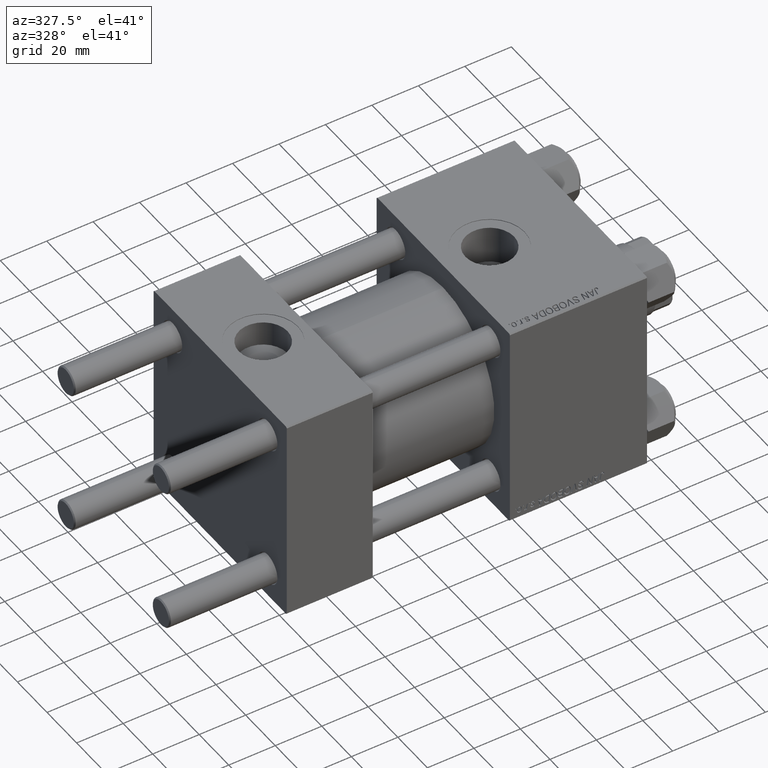
[diagram: clean part render]
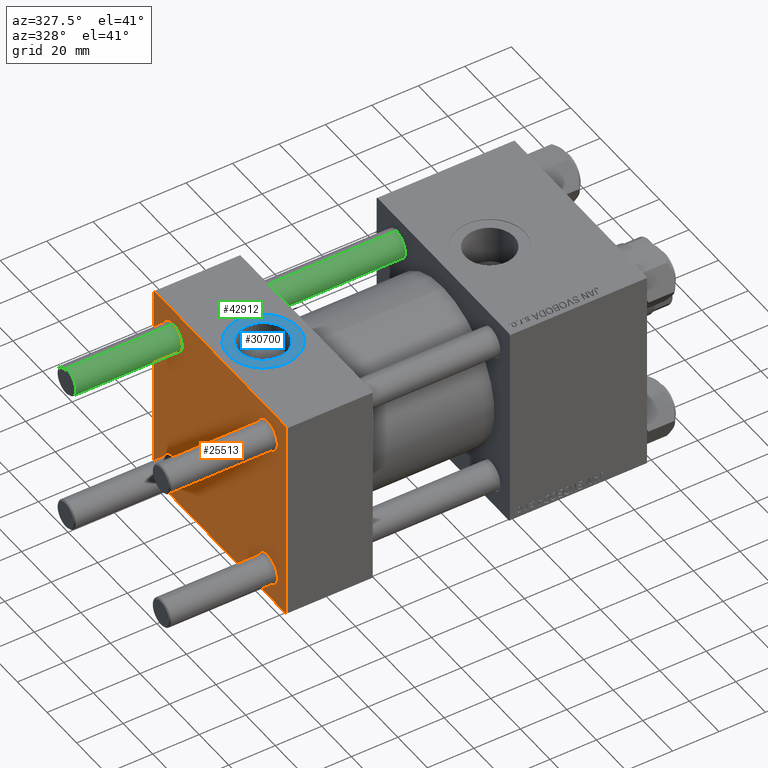
[diagram: same view with three faces highlighted in distinct colors, each labeled with its STEP entity id]
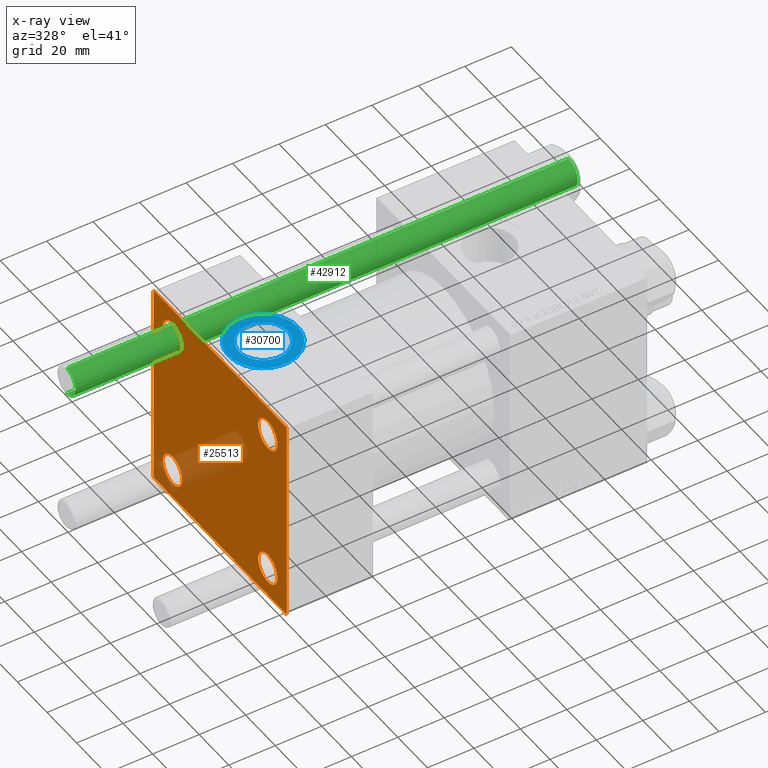
[diagram: x-ray of the same camera — body ghosted, the three highlighted faces saturated]
A machine part, auxiliary view with three faces highlighted in distinct colors.
The next image is the same camera in x-ray (body ghosted, the three faces saturated) — at least one of them is partly hidden behind the body in this view.
Their STEP definitions:

[orange] entity #25513 — the highlighted planar face has unit normal (-1, 0, 0).
#164 = DIRECTION ( 'NONE',  ( -1.000000000000000000, 0.000000000000000000, -0.000000000000000000 ) ) ;
#176 = CARTESIAN_POINT ( 'NONE',  ( 0.000000000000000000, -32.14999999999997726, -38.64999999999999147 ) ) ;
#410 = FACE_BOUND ( 'NONE', #42565, .T. ) ;
#802 = DIRECTION ( 'NONE',  ( -0.000000000000000000, -0.7071067811865474617, -0.7071067811865474617 ) ) ;
#1678 = VERTEX_POINT ( 'NONE', #45246 ) ;
#1873 = EDGE_CURVE ( 'NONE', #1678, #38840, #30712, .T. ) ;
#2014 = DIRECTION ( 'NONE',  ( -0.000000000000000000, 0.7071067811865425767, 0.7071067811865524577 ) ) ;
#2254 = DIRECTION ( 'NONE',  ( 1.000000000000000000, -0.000000000000000000, 0.000000000000000000 ) ) ;
#2354 = CARTESIAN_POINT ( 'NONE',  ( 0.000000000000000000, 44.99999999999998579, 44.50000000000001421 ) ) ;
#2434 = EDGE_CURVE ( 'NONE', #39003, #40499, #32366, .T. ) ;
#2668 = VERTEX_POINT ( 'NONE', #24236 ) ;
#2875 = EDGE_LOOP ( 'NONE', ( #44546, #21232 ) ) ;
#3552 = ORIENTED_EDGE ( 'NONE', *, *, #2434, .T. ) ;
#4585 = VECTOR ( 'NONE', #6507, 1000.000000000000114 ) ;
#5540 = DIRECTION ( 'NONE',  ( 1.000000000000000000, -0.000000000000000000, 0.000000000000000000 ) ) ;
#5693 = ORIENTED_EDGE ( 'NONE', *, *, #29555, .T. ) ;
#5806 = CARTESIAN_POINT ( 'NONE',  ( 0.000000000000000000, -45.00000000000000000, -44.49999999999995737 ) ) ;
#5877 = ORIENTED_EDGE ( 'NONE', *, *, #37934, .F. ) ;
#5882 = EDGE_CURVE ( 'NONE', #31914, #18005, #46362, .T. ) ;
#6075 = EDGE_LOOP ( 'NONE', ( #21102, #49089 ) ) ;
#6098 = EDGE_CURVE ( 'NONE', #31914, #8565, #44421, .T. ) ;
#6121 = EDGE_CURVE ( 'NONE', #38840, #1678, #6531, .T. ) ;
#6507 = DIRECTION ( 'NONE',  ( 0.000000000000000000, -0.7071067811865474617, 0.7071067811865474617 ) ) ;
#6531 = CIRCLE ( 'NONE', #24267, 6.499999999999977796 ) ;
#6868 = LINE ( 'NONE', #14942, #11347 ) ;
#6880 = CARTESIAN_POINT ( 'NONE',  ( 0.000000000000000000, 32.14999999999999147, 38.64999999999999147 ) ) ;
#7453 = AXIS2_PLACEMENT_3D ( 'NONE', #12968, #32420, #44038 ) ;
#7473 = FACE_BOUND ( 'NONE', #2875, .T. ) ;
#8454 = CARTESIAN_POINT ( 'NONE',  ( 0.000000000000000000, -44.49999999999995737, -45.00000000000000000 ) ) ;
#8456 = CARTESIAN_POINT ( 'NONE',  ( 0.000000000000000000, 0.000000000000000000, 0.000000000000000000 ) ) ;
#8565 = VERTEX_POINT ( 'NONE', #33125 ) ;
#8721 = EDGE_CURVE ( 'NONE', #27008, #8565, #29523, .T. ) ;
#9644 = VERTEX_POINT ( 'NONE', #8454 ) ;
#9801 = DIRECTION ( 'NONE',  ( 0.000000000000000000, -1.000000000000000000, -1.541976423090495387E-16 ) ) ;
#11347 = VECTOR ( 'NONE', #30358, 1000.000000000000000 ) ;
#11441 = VECTOR ( 'NONE', #2014, 1000.000000000000114 ) ;
#11734 = CARTESIAN_POINT ( 'NONE',  ( 0.000000000000000000, 44.74999999999999289, 44.74999999999999289 ) ) ;
#12246 = FACE_OUTER_BOUND ( 'NONE', #15155, .T. ) ;
#12584 = AXIS2_PLACEMENT_3D ( 'NONE', #46725, #47473, #39882 ) ;
#12626 = DIRECTION ( 'NONE',  ( 0.000000000000000000, 7.709882115452476934E-17, -1.000000000000000000 ) ) ;
#12823 = CARTESIAN_POINT ( 'NONE',  ( 0.000000000000000000, 32.14999999999999147, -25.65000000000002700 ) ) ;
#12827 = EDGE_CURVE ( 'NONE', #18005, #19794, #22240, .T. ) ;
#12968 = CARTESIAN_POINT ( 'NONE',  ( 0.000000000000000000, 32.14999999999999147, 32.15000000000000568 ) ) ;
#13771 = ORIENTED_EDGE ( 'NONE', *, *, #36974, .T. ) ;
#13995 = VECTOR ( 'NONE', #14403, 1000.000000000000000 ) ;
#14220 = EDGE_CURVE ( 'NONE', #2668, #42102, #36608, .T. ) ;
#14403 = DIRECTION ( 'NONE',  ( 0.000000000000000000, 0.000000000000000000, -1.000000000000000000 ) ) ;
#14921 = ORIENTED_EDGE ( 'NONE', *, *, #8721, .T. ) ;
#14942 = CARTESIAN_POINT ( 'NONE',  ( 0.000000000000000000, 44.99999999999998579, -44.99999999999998579 ) ) ;
#15155 = EDGE_LOOP ( 'NONE', ( #35939, #13771, #26961, #5693, #5877, #14921, #44265, #30003 ) ) ;
#16563 = CARTESIAN_POINT ( 'NONE',  ( 0.000000000000000000, -32.14999999999997726, 32.15000000000001279 ) ) ;
#16652 = DIRECTION ( 'NONE',  ( 0.000000000000000000, 0.000000000000000000, 1.000000000000000000 ) ) ;
#16895 = LINE ( 'NONE', #47733, #36997 ) ;
#17621 = CARTESIAN_POINT ( 'NONE',  ( 0.000000000000000000, -44.74999999999998579, -44.74999999999998579 ) ) ;
#17759 = EDGE_LOOP ( 'NONE', ( #21177, #34426 ) ) ;
#18005 = VERTEX_POINT ( 'NONE', #2354 ) ;
#18572 = DIRECTION ( 'NONE',  ( 0.000000000000000000, 0.000000000000000000, 1.000000000000000000 ) ) ;
#18864 = AXIS2_PLACEMENT_3D ( 'NONE', #29209, #29957, #18572 ) ;
#19794 = VERTEX_POINT ( 'NONE', #43421 ) ;
#21000 = AXIS2_PLACEMENT_3D ( 'NONE', #40139, #5540, #16652 ) ;
#21102 = ORIENTED_EDGE ( 'NONE', *, *, #6121, .T. ) ;
#21177 = ORIENTED_EDGE ( 'NONE', *, *, #47295, .T. ) ;
#21232 = ORIENTED_EDGE ( 'NONE', *, *, #48316, .T. ) ;
#22240 = LINE ( 'NONE', #30068, #13995 ) ;
#24236 = CARTESIAN_POINT ( 'NONE',  ( 0.000000000000000000, -32.14999999999997726, 38.65000000000003411 ) ) ;
#24267 = AXIS2_PLACEMENT_3D ( 'NONE', #40128, #2254, #44176 ) ;
#24273 = AXIS2_PLACEMENT_3D ( 'NONE', #40212, #36182, #44508 ) ;
#24711 = CIRCLE ( 'NONE', #25532, 6.499999999999977796 ) ;
#25513 = ADVANCED_FACE ( 'NONE', ( #7473, #410, #42826, #27411, #12246 ), #46873, .T. ) ;
#25532 = AXIS2_PLACEMENT_3D ( 'NONE', #46434, #33804, #37590 ) ;
#25938 = ORIENTED_EDGE ( 'NONE', *, *, #26810, .T. ) ;
#26810 = EDGE_CURVE ( 'NONE', #40499, #39003, #27905, .T. ) ;
#26961 = ORIENTED_EDGE ( 'NONE', *, *, #42953, .T. ) ;
#27008 = VERTEX_POINT ( 'NONE', #41872 ) ;
#27147 = DIRECTION ( 'NONE',  ( 0.000000000000000000, 0.7071067811865474617, -0.7071067811865474617 ) ) ;
#27411 = FACE_BOUND ( 'NONE', #17759, .T. ) ;
#27774 = EDGE_CURVE ( 'NONE', #33400, #47457, #24711, .T. ) ;
#27905 = CIRCLE ( 'NONE', #12584, 6.499999999999977796 ) ;
#29209 = CARTESIAN_POINT ( 'NONE',  ( 0.000000000000000000, -32.14999999999997726, 32.15000000000001279 ) ) ;
#29523 = LINE ( 'NONE', #44933, #11441 ) ;
#29555 = EDGE_CURVE ( 'NONE', #9644, #39486, #41372, .T. ) ;
#29814 = VECTOR ( 'NONE', #802, 1000.000000000000114 ) ;
#29957 = DIRECTION ( 'NONE',  ( 1.000000000000000000, -0.000000000000000000, 0.000000000000000000 ) ) ;
#30003 = ORIENTED_EDGE ( 'NONE', *, *, #5882, .T. ) ;
#30068 = CARTESIAN_POINT ( 'NONE',  ( 0.000000000000000000, 44.99999999999998579, 45.00000000000001421 ) ) ;
#30358 = DIRECTION ( 'NONE',  ( 0.000000000000000000, -1.000000000000000000, -1.541976423090495633E-16 ) ) ;
#30712 = CIRCLE ( 'NONE', #21000, 6.499999999999977796 ) ;
#31217 = CARTESIAN_POINT ( 'NONE',  ( 0.000000000000000000, -32.14999999999997726, -25.65000000000003411 ) ) ;
#31852 = CARTESIAN_POINT ( 'NONE',  ( 0.000000000000000000, 44.74999999999998579, -44.74999999999998579 ) ) ;
#31914 = VERTEX_POINT ( 'NONE', #46307 ) ;
#31992 = DIRECTION ( 'NONE',  ( 0.000000000000000000, 0.000000000000000000, 1.000000000000000000 ) ) ;
#32366 = CIRCLE ( 'NONE', #24273, 6.499999999999977796 ) ;
#32420 = DIRECTION ( 'NONE',  ( 1.000000000000000000, -0.000000000000000000, 0.000000000000000000 ) ) ;
#33125 = CARTESIAN_POINT ( 'NONE',  ( 0.000000000000000000, -44.49999999999995737, 45.00000000000000000 ) ) ;
#33400 = VERTEX_POINT ( 'NONE', #42888 ) ;
#33804 = DIRECTION ( 'NONE',  ( 1.000000000000000000, -0.000000000000000000, 0.000000000000000000 ) ) ;
#34426 = ORIENTED_EDGE ( 'NONE', *, *, #27774, .T. ) ;
#35939 = ORIENTED_EDGE ( 'NONE', *, *, #12827, .T. ) ;
#36182 = DIRECTION ( 'NONE',  ( 1.000000000000000000, -0.000000000000000000, 0.000000000000000000 ) ) ;
#36520 = AXIS2_PLACEMENT_3D ( 'NONE', #16563, #43859, #31992 ) ;
#36608 = CIRCLE ( 'NONE', #18864, 6.500000000000019540 ) ;
#36974 = EDGE_CURVE ( 'NONE', #19794, #44439, #47513, .T. ) ;
#36997 = VECTOR ( 'NONE', #12626, 1000.000000000000000 ) ;
#37590 = DIRECTION ( 'NONE',  ( 0.000000000000000000, 0.000000000000000000, 1.000000000000000000 ) ) ;
#37934 = EDGE_CURVE ( 'NONE', #27008, #39486, #16895, .T. ) ;
#38091 = VECTOR ( 'NONE', #9801, 1000.000000000000000 ) ;
#38840 = VERTEX_POINT ( 'NONE', #12823 ) ;
#39003 = VERTEX_POINT ( 'NONE', #176 ) ;
#39486 = VERTEX_POINT ( 'NONE', #5806 ) ;
#39882 = DIRECTION ( 'NONE',  ( 0.000000000000000000, 0.000000000000000000, 1.000000000000000000 ) ) ;
#40128 = CARTESIAN_POINT ( 'NONE',  ( 0.000000000000000000, 32.14999999999999147, -32.15000000000000568 ) ) ;
#40139 = CARTESIAN_POINT ( 'NONE',  ( 0.000000000000000000, 32.14999999999999147, -32.15000000000000568 ) ) ;
#40212 = CARTESIAN_POINT ( 'NONE',  ( 0.000000000000000000, -32.14999999999997726, -32.15000000000001279 ) ) ;
#40499 = VERTEX_POINT ( 'NONE', #31217 ) ;
#41227 = VECTOR ( 'NONE', #27147, 1000.000000000000114 ) ;
#41372 = LINE ( 'NONE', #17621, #4585 ) ;
#41872 = CARTESIAN_POINT ( 'NONE',  ( 0.000000000000000000, -45.00000000000000711, 44.49999999999997158 ) ) ;
#42102 = VERTEX_POINT ( 'NONE', #43217 ) ;
#42416 = AXIS2_PLACEMENT_3D ( 'NONE', #8456, #164, #46131 ) ;
#42565 = EDGE_LOOP ( 'NONE', ( #25938, #3552 ) ) ;
#42826 = FACE_BOUND ( 'NONE', #6075, .T. ) ;
#42888 = CARTESIAN_POINT ( 'NONE',  ( 0.000000000000000000, 32.14999999999999147, 25.65000000000002700 ) ) ;
#42953 = EDGE_CURVE ( 'NONE', #44439, #9644, #6868, .T. ) ;
#43217 = CARTESIAN_POINT ( 'NONE',  ( 0.000000000000000000, -32.14999999999997726, 25.64999999999999147 ) ) ;
#43421 = CARTESIAN_POINT ( 'NONE',  ( 0.000000000000000000, 44.99999999999998579, -44.49999999999995737 ) ) ;
#43859 = DIRECTION ( 'NONE',  ( 1.000000000000000000, -0.000000000000000000, 0.000000000000000000 ) ) ;
#44038 = DIRECTION ( 'NONE',  ( 0.000000000000000000, 0.000000000000000000, 1.000000000000000000 ) ) ;
#44176 = DIRECTION ( 'NONE',  ( 0.000000000000000000, 0.000000000000000000, 1.000000000000000000 ) ) ;
#44265 = ORIENTED_EDGE ( 'NONE', *, *, #6098, .F. ) ;
#44421 = LINE ( 'NONE', #48215, #38091 ) ;
#44439 = VERTEX_POINT ( 'NONE', #46159 ) ;
#44508 = DIRECTION ( 'NONE',  ( 0.000000000000000000, 0.000000000000000000, 1.000000000000000000 ) ) ;
#44546 = ORIENTED_EDGE ( 'NONE', *, *, #14220, .T. ) ;
#44933 = CARTESIAN_POINT ( 'NONE',  ( -0.000000000000000000, -44.75000000000029843, 44.74999999999967315 ) ) ;
#45246 = CARTESIAN_POINT ( 'NONE',  ( 0.000000000000000000, 32.14999999999999147, -38.64999999999998437 ) ) ;
#46131 = DIRECTION ( 'NONE',  ( -0.000000000000000000, 0.000000000000000000, 1.000000000000000000 ) ) ;
#46159 = CARTESIAN_POINT ( 'NONE',  ( 0.000000000000000000, 44.49999999999998579, -44.99999999999998579 ) ) ;
#46307 = CARTESIAN_POINT ( 'NONE',  ( 0.000000000000000000, 44.49999999999998579, 45.00000000000001421 ) ) ;
#46362 = LINE ( 'NONE', #11734, #41227 ) ;
#46434 = CARTESIAN_POINT ( 'NONE',  ( 0.000000000000000000, 32.14999999999999147, 32.15000000000000568 ) ) ;
#46725 = CARTESIAN_POINT ( 'NONE',  ( 0.000000000000000000, -32.14999999999997726, -32.15000000000001279 ) ) ;
#46873 = PLANE ( 'NONE',  #42416 ) ;
#47295 = EDGE_CURVE ( 'NONE', #47457, #33400, #48574, .T. ) ;
#47457 = VERTEX_POINT ( 'NONE', #6880 ) ;
#47473 = DIRECTION ( 'NONE',  ( 1.000000000000000000, -0.000000000000000000, 0.000000000000000000 ) ) ;
#47513 = LINE ( 'NONE', #31852, #29814 ) ;
#47733 = CARTESIAN_POINT ( 'NONE',  ( 0.000000000000000000, -45.00000000000000711, 45.00000000000000000 ) ) ;
#47816 = CIRCLE ( 'NONE', #36520, 6.500000000000019540 ) ;
#48215 = CARTESIAN_POINT ( 'NONE',  ( 0.000000000000000000, 44.99999999999998579, 45.00000000000001421 ) ) ;
#48316 = EDGE_CURVE ( 'NONE', #42102, #2668, #47816, .T. ) ;
#48574 = CIRCLE ( 'NONE', #7453, 6.499999999999977796 ) ;
#49089 = ORIENTED_EDGE ( 'NONE', *, *, #1873, .T. ) ;

[blue] entity #30700 — the highlighted planar face has unit normal (0, 0, 1).
#955 = CARTESIAN_POINT ( 'NONE',  ( 33.50000000000000000, -8.673617379884038628E-15, 44.80000000000000426 ) ) ;
#1457 = AXIS2_PLACEMENT_3D ( 'NONE', #23735, #42689, #8063 ) ;
#2129 = EDGE_CURVE ( 'NONE', #22354, #34541, #21835, .T. ) ;
#4272 = CARTESIAN_POINT ( 'NONE',  ( 18.50000000000000000, -8.673617379884038628E-15, 44.80000000000000426 ) ) ;
#4629 = ORIENTED_EDGE ( 'NONE', *, *, #2129, .T. ) ;
#4719 = AXIS2_PLACEMENT_3D ( 'NONE', #10453, #14746, #37988 ) ;
#5482 = CIRCLE ( 'NONE', #1457, 15.00000000000000355 ) ;
#5833 = AXIS2_PLACEMENT_3D ( 'NONE', #4272, #47454, #23954 ) ;
#7137 = CIRCLE ( 'NONE', #4719, 10.48000000000000043 ) ;
#7705 = DIRECTION ( 'NONE',  ( 1.000000000000000000, 0.000000000000000000, -0.000000000000000000 ) ) ;
#7787 = CARTESIAN_POINT ( 'NONE',  ( 3.499999999999997780, -6.836647181163008250E-15, 44.80000000000000426 ) ) ;
#8063 = DIRECTION ( 'NONE',  ( 1.000000000000000000, 0.000000000000000000, 0.000000000000000000 ) ) ;
#8475 = EDGE_LOOP ( 'NONE', ( #46095, #45339 ) ) ;
#8644 = AXIS2_PLACEMENT_3D ( 'NONE', #26912, #33986, #7705 ) ;
#10453 = CARTESIAN_POINT ( 'NONE',  ( 18.50000000000000000, -8.673617379884038628E-15, 44.80000000000000426 ) ) ;
#12638 = VERTEX_POINT ( 'NONE', #40189 ) ;
#12810 = DIRECTION ( 'NONE',  ( 1.000000000000000000, 0.000000000000000000, 0.000000000000000000 ) ) ;
#14746 = DIRECTION ( 'NONE',  ( 0.000000000000000000, 0.000000000000000000, 1.000000000000000000 ) ) ;
#21835 = CIRCLE ( 'NONE', #49276, 15.00000000000000355 ) ;
#22354 = VERTEX_POINT ( 'NONE', #7787 ) ;
#23735 = CARTESIAN_POINT ( 'NONE',  ( 18.50000000000000000, -8.673617379884038628E-15, 44.80000000000000426 ) ) ;
#23931 = DIRECTION ( 'NONE',  ( 0.000000000000000000, 0.000000000000000000, 1.000000000000000000 ) ) ;
#23954 = DIRECTION ( 'NONE',  ( 1.000000000000000000, 0.000000000000000000, 0.000000000000000000 ) ) ;
#26912 = CARTESIAN_POINT ( 'NONE',  ( 18.50000000000000000, -8.673617379884038628E-15, 44.80000000000000426 ) ) ;
#29197 = CIRCLE ( 'NONE', #5833, 10.48000000000000043 ) ;
#29982 = CARTESIAN_POINT ( 'NONE',  ( 28.98000000000000043, -8.673617379884038628E-15, 44.80000000000000426 ) ) ;
#30700 = ADVANCED_FACE ( 'NONE', ( #30706, #46116 ), #41565, .T. ) ;
#30706 = FACE_BOUND ( 'NONE', #8475, .T. ) ;
#32293 = EDGE_CURVE ( 'NONE', #34541, #22354, #5482, .T. ) ;
#33119 = ORIENTED_EDGE ( 'NONE', *, *, #32293, .T. ) ;
#33951 = EDGE_LOOP ( 'NONE', ( #33119, #4629 ) ) ;
#33986 = DIRECTION ( 'NONE',  ( 0.000000000000000000, 0.000000000000000000, 1.000000000000000000 ) ) ;
#34541 = VERTEX_POINT ( 'NONE', #955 ) ;
#34559 = CARTESIAN_POINT ( 'NONE',  ( 18.50000000000000000, -8.673617379884038628E-15, 44.80000000000000426 ) ) ;
#37988 = DIRECTION ( 'NONE',  ( 1.000000000000000000, 0.000000000000000000, 0.000000000000000000 ) ) ;
#38283 = EDGE_CURVE ( 'NONE', #12638, #41669, #7137, .T. ) ;
#40189 = CARTESIAN_POINT ( 'NONE',  ( 8.019999999999999574, -7.390187534377611561E-15, 44.80000000000000426 ) ) ;
#41565 = PLANE ( 'NONE',  #8644 ) ;
#41669 = VERTEX_POINT ( 'NONE', #29982 ) ;
#42689 = DIRECTION ( 'NONE',  ( 0.000000000000000000, 0.000000000000000000, 1.000000000000000000 ) ) ;
#45339 = ORIENTED_EDGE ( 'NONE', *, *, #38283, .F. ) ;
#46095 = ORIENTED_EDGE ( 'NONE', *, *, #46788, .F. ) ;
#46116 = FACE_OUTER_BOUND ( 'NONE', #33951, .T. ) ;
#46788 = EDGE_CURVE ( 'NONE', #41669, #12638, #29197, .T. ) ;
#47454 = DIRECTION ( 'NONE',  ( 0.000000000000000000, 0.000000000000000000, 1.000000000000000000 ) ) ;
#49276 = AXIS2_PLACEMENT_3D ( 'NONE', #34559, #23931, #12810 ) ;

[green] entity #42912 — the highlighted cylindrical surface (edge-blend (fillet) strip) has radius 6 mm, axis along (-1, -0, -0).
#55 = CARTESIAN_POINT ( 'NONE',  ( 0.000000000000000000, 0.000000000000000000, 217.0000000000000000 ) ) ;
#250 = EDGE_CURVE ( 'NONE', #40664, #18280, #38745, .T. ) ;
#1429 = VERTEX_POINT ( 'NONE', #18761 ) ;
#2623 = ORIENTED_EDGE ( 'NONE', *, *, #46043, .T. ) ;
#3366 = AXIS2_PLACEMENT_3D ( 'NONE', #24700, #25197, #36319 ) ;
#4303 = DIRECTION ( 'NONE',  ( -0.000000000000000000, -0.000000000000000000, -1.000000000000000000 ) ) ;
#6444 = VERTEX_POINT ( 'NONE', #22601 ) ;
#6586 = CIRCLE ( 'NONE', #3366, 6.000000000000000888 ) ;
#7499 = DIRECTION ( 'NONE',  ( 0.000000000000000000, 0.000000000000000000, -1.000000000000000000 ) ) ;
#8866 = AXIS2_PLACEMENT_3D ( 'NONE', #25941, #7499, #22917 ) ;
#11042 = ORIENTED_EDGE ( 'NONE', *, *, #49929, .F. ) ;
#15497 = CARTESIAN_POINT ( 'NONE',  ( -6.000000000000000888, 0.000000000000000000, 217.0000000000000000 ) ) ;
#15661 = LINE ( 'NONE', #18695, #48686 ) ;
#16553 = CARTESIAN_POINT ( 'NONE',  ( -6.000000000000000888, 0.000000000000000000, 216.4999999999999716 ) ) ;
#16822 = EDGE_CURVE ( 'NONE', #18280, #6444, #42031, .T. ) ;
#18280 = VERTEX_POINT ( 'NONE', #16553 ) ;
#18695 = CARTESIAN_POINT ( 'NONE',  ( 6.000000000000000888, 7.347880794884120722E-16, 217.0000000000000000 ) ) ;
#18761 = CARTESIAN_POINT ( 'NONE',  ( 6.000000000000000888, 7.347880794884120722E-16, 0.4999999999999449329 ) ) ;
#22601 = CARTESIAN_POINT ( 'NONE',  ( -6.000000000000000888, 0.000000000000000000, 0.4999999999999449329 ) ) ;
#22917 = DIRECTION ( 'NONE',  ( 1.000000000000000000, 0.000000000000000000, 0.000000000000000000 ) ) ;
#24700 = CARTESIAN_POINT ( 'NONE',  ( 0.000000000000000000, 0.000000000000000000, 0.4999999999999449329 ) ) ;
#25197 = DIRECTION ( 'NONE',  ( -0.000000000000000000, -0.000000000000000000, 1.000000000000000000 ) ) ;
#25941 = CARTESIAN_POINT ( 'NONE',  ( 0.000000000000000000, 0.000000000000000000, 216.4999999999999716 ) ) ;
#28427 = ORIENTED_EDGE ( 'NONE', *, *, #16822, .T. ) ;
#29562 = ORIENTED_EDGE ( 'NONE', *, *, #250, .T. ) ;
#30304 = VECTOR ( 'NONE', #30415, 1000.000000000000000 ) ;
#30415 = DIRECTION ( 'NONE',  ( -0.000000000000000000, -0.000000000000000000, -1.000000000000000000 ) ) ;
#34146 = FACE_OUTER_BOUND ( 'NONE', #49533, .T. ) ;
#34883 = DIRECTION ( 'NONE',  ( -1.000000000000000000, 0.000000000000000000, 0.000000000000000000 ) ) ;
#36319 = DIRECTION ( 'NONE',  ( 1.000000000000000000, 0.000000000000000000, 0.000000000000000000 ) ) ;
#36993 = CARTESIAN_POINT ( 'NONE',  ( 6.000000000000000888, 7.347880794884120722E-16, 216.4999999999999716 ) ) ;
#38745 = CIRCLE ( 'NONE', #8866, 6.000000000000000888 ) ;
#40664 = VERTEX_POINT ( 'NONE', #36993 ) ;
#42009 = AXIS2_PLACEMENT_3D ( 'NONE', #55, #42231, #34883 ) ;
#42031 = LINE ( 'NONE', #15497, #30304 ) ;
#42231 = DIRECTION ( 'NONE',  ( -0.000000000000000000, -0.000000000000000000, -1.000000000000000000 ) ) ;
#42912 = ADVANCED_FACE ( 'NONE', ( #34146 ), #45518, .T. ) ;
#45518 = CYLINDRICAL_SURFACE ( 'NONE', #42009, 6.000000000000000888 ) ;
#46043 = EDGE_CURVE ( 'NONE', #6444, #1429, #6586, .T. ) ;
#48686 = VECTOR ( 'NONE', #4303, 1000.000000000000000 ) ;
#49533 = EDGE_LOOP ( 'NONE', ( #11042, #29562, #28427, #2623 ) ) ;
#49929 = EDGE_CURVE ( 'NONE', #40664, #1429, #15661, .T. ) ;